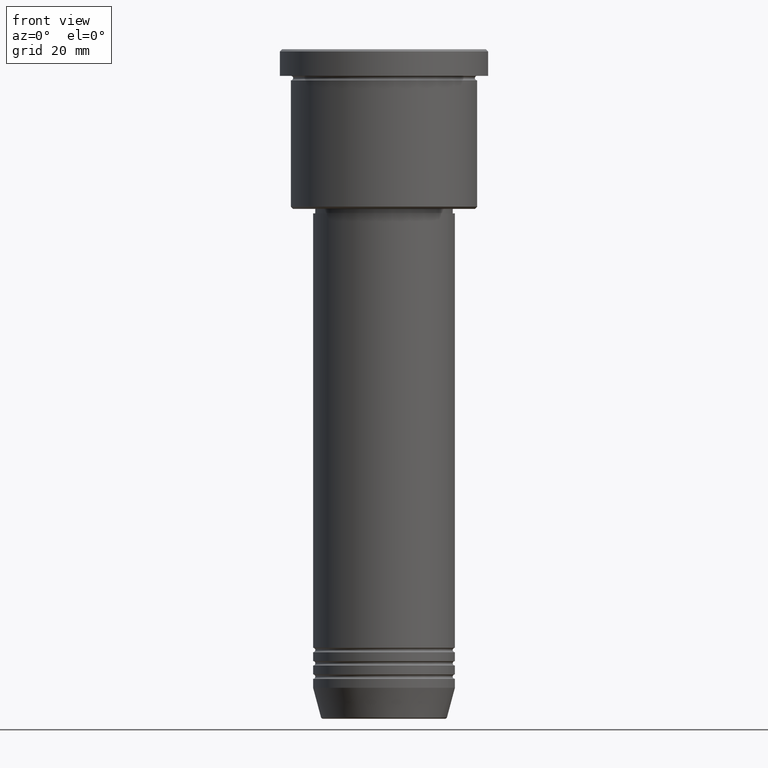
[diagram: clean part render]
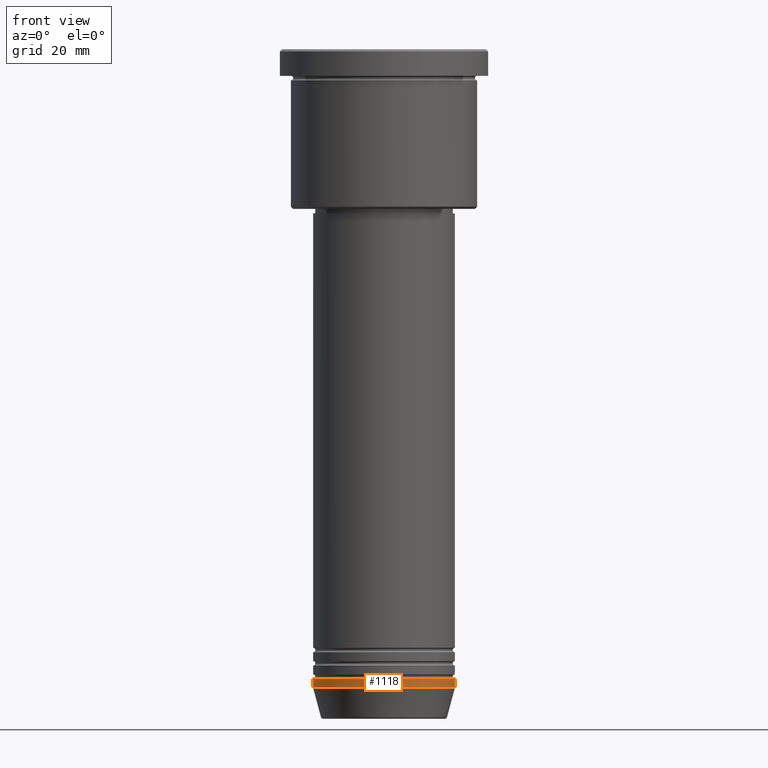
[diagram: same view with one face highlighted and labeled with its STEP entity id]
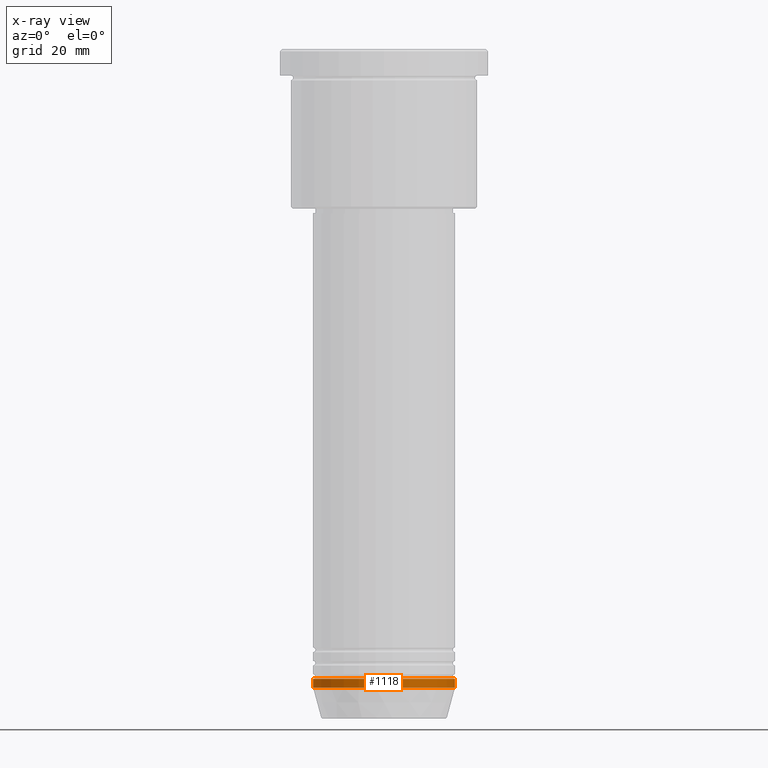
[diagram: x-ray of the same camera — body ghosted, the highlighted face saturated]
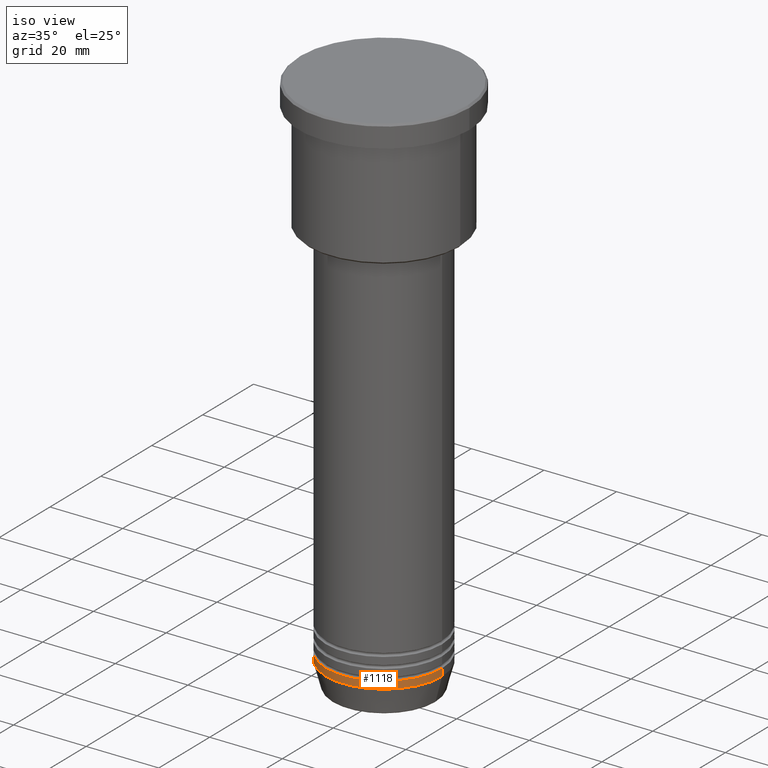
[diagram: same view with one face highlighted and labeled with its STEP entity id]
A machine part, front view. The second image highlights one B-rep face of the part: STEP entity #1118.
The next image is the same camera in x-ray: the body ghosted, the highlighted face saturated — about 0% of this face is hidden behind the body in this view.
A second angle (iso view) of the same face is appended — the face is thin or edge-on in the first view.
In plain terms, the highlighted cylindrical surface (partial cylindrical patch) has radius 16 mm, axis along (-0, -0, 1).
Its self-contained STEP definition (entity closure, byte-faithful):
#34 = CARTESIAN_POINT ( 'NONE',  ( 0.000000000000000000, 0.000000000000000000, -144.0000000000000284 ) ) ;
#57 = DIRECTION ( 'NONE',  ( 1.000000000000000000, 0.000000000000000000, 0.000000000000000000 ) ) ;
#64 = CIRCLE ( 'NONE', #240, 16.00000000000000000 ) ;
#90 = CARTESIAN_POINT ( 'NONE',  ( -16.00000000000000000, 1.959434878635765131E-15, -144.0000000000000284 ) ) ;
#102 = EDGE_CURVE ( 'NONE', #195, #319, #159, .T. ) ;
#120 = AXIS2_PLACEMENT_3D ( 'NONE', #992, #177, #57 ) ;
#157 = ORIENTED_EDGE ( 'NONE', *, *, #102, .T. ) ;
#159 = LINE ( 'NONE', #256, #1002 ) ;
#177 = DIRECTION ( 'NONE',  ( -0.000000000000000000, -0.000000000000000000, 1.000000000000000000 ) ) ;
#179 = CARTESIAN_POINT ( 'NONE',  ( 16.00000000000000000, 0.000000000000000000, -142.0000000000000284 ) ) ;
#193 = ORIENTED_EDGE ( 'NONE', *, *, #639, .F. ) ;
#195 = VERTEX_POINT ( 'NONE', #479 ) ;
#240 = AXIS2_PLACEMENT_3D ( 'NONE', #34, #779, #308 ) ;
#256 = CARTESIAN_POINT ( 'NONE',  ( 16.00000000000000000, 0.000000000000000000, 0.000000000000000000 ) ) ;
#301 = ORIENTED_EDGE ( 'NONE', *, *, #365, .T. ) ;
#308 = DIRECTION ( 'NONE',  ( 1.000000000000000000, 0.000000000000000000, 0.000000000000000000 ) ) ;
#319 = VERTEX_POINT ( 'NONE', #179 ) ;
#347 = DIRECTION ( 'NONE',  ( -0.000000000000000000, -0.000000000000000000, 1.000000000000000000 ) ) ;
#365 = EDGE_CURVE ( 'NONE', #829, #195, #64, .T. ) ;
#395 = ORIENTED_EDGE ( 'NONE', *, *, #631, .F. ) ;
#447 = AXIS2_PLACEMENT_3D ( 'NONE', #1061, #762, #775 ) ;
#479 = CARTESIAN_POINT ( 'NONE',  ( 16.00000000000000000, 0.000000000000000000, -144.0000000000000284 ) ) ;
#575 = CYLINDRICAL_SURFACE ( 'NONE', #447, 16.00000000000000000 ) ;
#631 = EDGE_CURVE ( 'NONE', #1016, #319, #865, .T. ) ;
#639 = EDGE_CURVE ( 'NONE', #829, #1016, #868, .T. ) ;
#727 = EDGE_LOOP ( 'NONE', ( #193, #301, #157, #395 ) ) ;
#757 = FACE_OUTER_BOUND ( 'NONE', #727, .T. ) ;
#762 = DIRECTION ( 'NONE',  ( -0.000000000000000000, -0.000000000000000000, 1.000000000000000000 ) ) ;
#775 = DIRECTION ( 'NONE',  ( 1.000000000000000000, 0.000000000000000000, 0.000000000000000000 ) ) ;
#779 = DIRECTION ( 'NONE',  ( -0.000000000000000000, -0.000000000000000000, 1.000000000000000000 ) ) ;
#781 = CARTESIAN_POINT ( 'NONE',  ( -16.00000000000000000, 1.959434878635765131E-15, 0.000000000000000000 ) ) ;
#787 = VECTOR ( 'NONE', #1138, 1000.000000000000000 ) ;
#829 = VERTEX_POINT ( 'NONE', #90 ) ;
#865 = CIRCLE ( 'NONE', #120, 16.00000000000000000 ) ;
#868 = LINE ( 'NONE', #781, #787 ) ;
#992 = CARTESIAN_POINT ( 'NONE',  ( 0.000000000000000000, 0.000000000000000000, -142.0000000000000284 ) ) ;
#1002 = VECTOR ( 'NONE', #347, 1000.000000000000000 ) ;
#1016 = VERTEX_POINT ( 'NONE', #1106 ) ;
#1061 = CARTESIAN_POINT ( 'NONE',  ( 0.000000000000000000, 0.000000000000000000, 0.000000000000000000 ) ) ;
#1106 = CARTESIAN_POINT ( 'NONE',  ( -16.00000000000000000, 1.959434878635765131E-15, -142.0000000000000284 ) ) ;
#1118 = ADVANCED_FACE ( 'NONE', ( #757 ), #575, .T. ) ;
#1138 = DIRECTION ( 'NONE',  ( -0.000000000000000000, -0.000000000000000000, 1.000000000000000000 ) ) ;